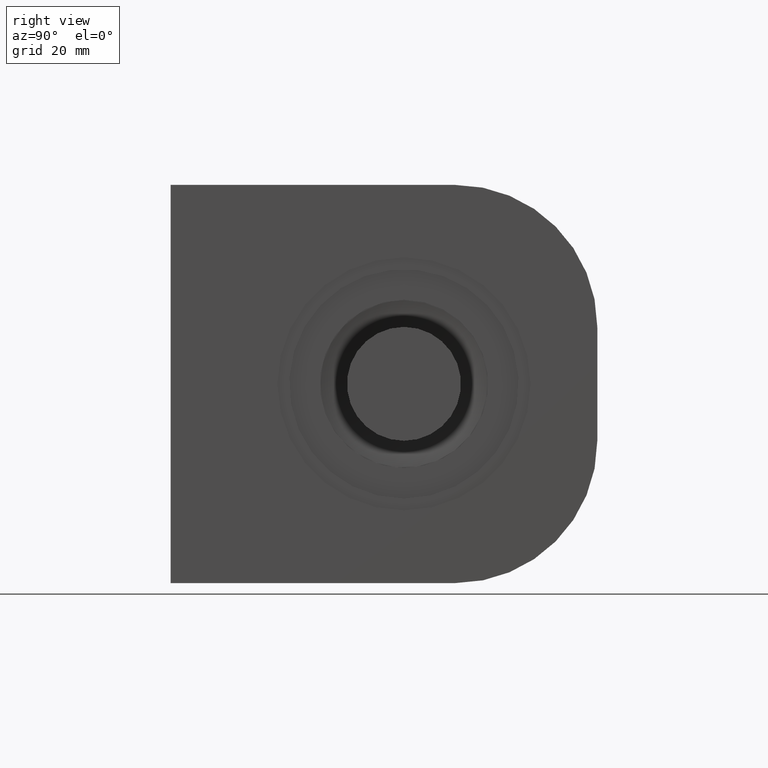
[diagram: clean part render]
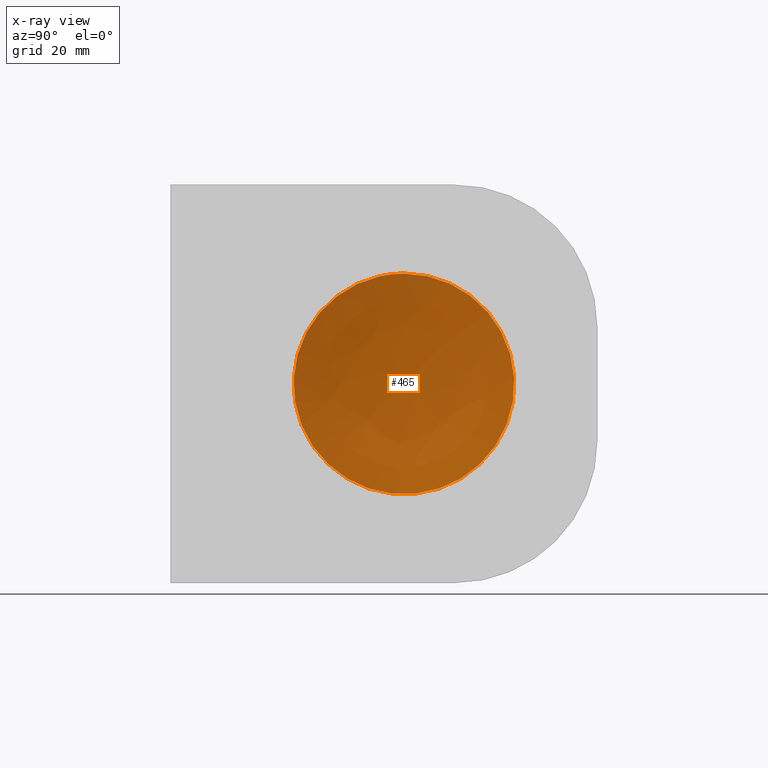
[diagram: x-ray — body ghosted, one internal face saturated and labeled with its STEP entity id]
A machine part, right view, then the same camera in x-ray: the body is ghosted and one INTERNAL B-rep face — a face not visible from any outside direction — is saturated and labeled: STEP entity #465.
In plain terms, the highlighted face is a freeform B-spline surface patch.
Its self-contained STEP definition (entity closure, byte-faithful):
#65 = CARTESIAN_POINT ( 'NONE',  ( 6.258551541125479289, 6.637599476776025575, -19.92762313814807129 ) ) ;
#277 = FACE_OUTER_BOUND ( 'NONE', #9398, .T. ) ;
#383 = CARTESIAN_POINT ( 'NONE',  ( 6.946203950081994094, 14.60332213015514213, 12.78724174221709475 ) ) ;
#456 = CARTESIAN_POINT ( 'NONE',  ( 6.946203950081999423, 8.568068353785555757, -17.41696023236161395 ) ) ;
#465 = ADVANCED_FACE ( 'NONE', ( #277 ), #5339, .F. ) ;
#525 = CARTESIAN_POINT ( 'NONE',  ( 6.946203950082002976, 19.39868396982641841, -1.298981685767838679 ) ) ;
#660 = CARTESIAN_POINT ( 'NONE',  ( 6.946203950082000311, 16.84697726151716779, 9.702770620593947015 ) ) ;
#734 = CARTESIAN_POINT ( 'NONE',  ( 6.946203950082002976, 4.392869564589938491, -18.90684591989301211 ) ) ;
#804 = CARTESIAN_POINT ( 'NONE',  ( 6.946203950082082024, -19.24515430384846937, -2.528295734589034449 ) ) ;
#873 = CARTESIAN_POINT ( 'NONE',  ( 6.946203950081985212, -0.6398776862006231303, -19.39977498918445420 ) ) ;
#944 = CARTESIAN_POINT ( 'NONE',  ( 6.946203950082004752, -12.80116983903454297, 14.59106020650618341 ) ) ;
#1007 = CARTESIAN_POINT ( 'NONE',  ( 6.946203950081985212, -2.541899611589565566, 19.27423934094847979 ) ) ;
#1415 = CARTESIAN_POINT ( 'NONE',  ( 6.245948097520509279, 19.65170365344365422, -6.559861190522755514 ) ) ;
#1451 = CARTESIAN_POINT ( 'NONE',  ( 6.946203950081980771, 11.85822873687669166, 15.40663636244817525 ) ) ;
#1508 = CARTESIAN_POINT ( 'NONE',  ( 6.946203950081998535, 11.83157268045081878, -15.42746063730172956 ) ) ;
#1577 = CARTESIAN_POINT ( 'NONE',  ( 6.946203950082006529, 19.24607539113172194, 2.519991824685212656 ) ) ;
#1646 = CARTESIAN_POINT ( 'NONE',  ( 6.946203950082006529, 19.36952412616860641, 1.258297215835074701 ) ) ;
#1712 = CARTESIAN_POINT ( 'NONE',  ( 6.946203950082013634, 9.719796073116466317, 16.80148036121550703 ) ) ;
#1783 = CARTESIAN_POINT ( 'NONE',  ( 6.946203950082019851, -1.281658504120813058, 19.39999996233405710 ) ) ;
#1860 = CARTESIAN_POINT ( 'NONE',  ( 6.946203950082001199, -9.719697484647349839, -16.80155752131329194 ) ) ;
#1924 = CARTESIAN_POINT ( 'NONE',  ( 6.946203950082003864, -8.597875277641120917, -17.40233878089916786 ) ) ;
#1989 = CARTESIAN_POINT ( 'NONE',  ( 6.946203950081983436, -16.81090132822010474, 9.703440768864357580 ) ) ;
#2064 = CARTESIAN_POINT ( 'NONE',  ( 6.946203950082008305, -6.234894568791050418, 18.38182606747509240 ) ) ;
#2390 = CARTESIAN_POINT ( 'NONE',  ( 6.260653718132478396, -19.75020321123500366, 6.442501741881993205 ) ) ;
#2575 = CARTESIAN_POINT ( 'NONE',  ( 6.946203950082019851, 1.281658504120831044, 19.39999996233404644 ) ) ;
#2680 = ORIENTED_EDGE ( 'NONE', *, *, #6373, .F. ) ;
#2706 = CARTESIAN_POINT ( 'NONE',  ( 6.946203950082009193, 18.17188894835864232, 6.822596649191170926 ) ) ;
#2776 = CARTESIAN_POINT ( 'NONE',  ( 6.946203950081995870, 15.41526772339394391, 11.79576574992345606 ) ) ;
#2845 = CARTESIAN_POINT ( 'NONE',  ( 6.946203950081979883, -5.043836202507014477, -18.77566251201246672 ) ) ;
#2917 = CARTESIAN_POINT ( 'NONE',  ( 6.946203950081999423, -19.15108964665016700, -3.161959514784617564 ) ) ;
#2989 = CARTESIAN_POINT ( 'NONE',  ( 6.946203950081994094, -10.26255707153453578, -16.47541185639293815 ) ) ;
#3058 = CARTESIAN_POINT ( 'NONE',  ( 6.946203950081985212, -18.96463485297438822, 4.099327633339921562 ) ) ;
#3125 = CARTESIAN_POINT ( 'NONE',  ( 6.946203950082010969, -8.602684114097593593, 17.43475787800918297 ) ) ;
#3185 = CARTESIAN_POINT ( 'NONE',  ( 6.946203950081998535, 5.198625662380514612E-15, 19.39999996233401802 ) ) ;
#3313 = CARTESIAN_POINT ( 'NONE',  ( 3.121013655138765497, 6.637599476776025575, -6.805789681143592951 ) ) ;
#3460 = CARTESIAN_POINT ( 'NONE',  ( 6.238775763578806810, -6.739801553572458026, 19.81025721178187027 ) ) ;
#3641 = CARTESIAN_POINT ( 'NONE',  ( 6.946203950081994982, 18.90851497361694200, 4.384888565264630778 ) ) ;
#3839 = CARTESIAN_POINT ( 'NONE',  ( 6.946203950081997647, 12.83396712273647644, 14.60319807867588082 ) ) ;
#3910 = CARTESIAN_POINT ( 'NONE',  ( 6.946203950081995870, 14.15216811190499513, -13.28442996558834821 ) ) ;
#3976 = CARTESIAN_POINT ( 'NONE',  ( 6.946203950082000311, 5.016666041039978374, -18.75091249751762490 ) ) ;
#4044 = CARTESIAN_POINT ( 'NONE',  ( 6.946203950082001199, 2.517428961074918092, -19.27814976626554611 ) ) ;
#4120 = CARTESIAN_POINT ( 'NONE',  ( 6.946203950081994094, -18.41385751682450689, -6.237364275147758264 ) ) ;
#4186 = CARTESIAN_POINT ( 'NONE',  ( 6.946203950082006529, -11.81243192870859637, 15.40244912756804752 ) ) ;
#4690 = CARTESIAN_POINT ( 'NONE',  ( 6.946203950082006529, 18.90078178772973416, -4.418160927654258607 ) ) ;
#4768 = CARTESIAN_POINT ( 'NONE',  ( 6.946203950082017187, 7.424440267380582270, -17.95642147421876089 ) ) ;
#4897 = CARTESIAN_POINT ( 'NONE',  ( 6.946203950082021628, 17.42734571882061445, -8.617453470722775677 ) ) ;
#5040 = CARTESIAN_POINT ( 'NONE',  ( 6.946203950082004752, -18.77997892130106194, -5.028049980706168043 ) ) ;
#5106 = CARTESIAN_POINT ( 'NONE',  ( 6.946203950082005640, -18.65377399374351697, 5.338294725314786326 ) ) ;
#5178 = CARTESIAN_POINT ( 'NONE',  ( 6.946203950082009193, -13.27168877197551744, 14.16413447974594852 ) ) ;
#5249 = CARTESIAN_POINT ( 'NONE',  ( 6.946203950082009193, -8.016326029764702099, -17.67776308673761321 ) ) ;
#5339 =( BOUNDED_SURFACE ( )  B_SPLINE_SURFACE ( 3, 3, ( 
 ( #11988, #1415, #13110, #5721 ),
 ( #65, #3313, #6550, #10873 ),
 ( #6685, #7609, #6480, #3460 ),
 ( #10021, #7758, #2390, #8889 ) ),
 .UNSPECIFIED., .F., .F., .F. ) 
 B_SPLINE_SURFACE_WITH_KNOTS ( ( 4, 4 ),
 ( 4, 4 ),
 ( 0.000000000000000000, 1.000000000000000000 ),
 ( 0.000000000000000000, 1.000000000000000000 ),
 .UNSPECIFIED. ) 
 GEOMETRIC_REPRESENTATION_ITEM ( )  RATIONAL_B_SPLINE_SURFACE ( (
 ( 1.000000000000000000, 0.9818297983848633947, 0.9818297983848633947, 1.000000000000000000),
 ( 0.9818027376989487687, 0.9639631840086657633, 0.9639631840086657633, 0.9818027376989487687),
 ( 0.9818027376989487687, 0.9639631840086657633, 0.9639631840086657633, 0.9818027376989487687),
 ( 1.000000000000000000, 0.9818297983848633947, 0.9818297983848633947, 1.000000000000000000) ) ) 
 REPRESENTATION_ITEM ( '' )  SURFACE ( )  );
#5721 = CARTESIAN_POINT ( 'NONE',  ( 9.243568033391415639, 19.65170365344365422, 19.09618771150509531 ) ) ;
#5760 = CARTESIAN_POINT ( 'NONE',  ( 6.946203950081997647, 18.75559593023402272, 4.999191890527908910 ) ) ;
#5818 = CARTESIAN_POINT ( 'NONE',  ( 6.946203950081994094, 10.23733785595234380, -16.49136367857662222 ) ) ;
#5958 = CARTESIAN_POINT ( 'NONE',  ( 6.946203950082000311, 15.76547922048316153, -11.30979740854537496 ) ) ;
#6098 = CARTESIAN_POINT ( 'NONE',  ( 6.946203950082019851, 6.830473686658677934E-15, 19.39999996233405355 ) ) ;
#6170 = CARTESIAN_POINT ( 'NONE',  ( 6.946203950081991429, -16.81040934265468323, -9.704441911277092103 ) ) ;
#6237 = CARTESIAN_POINT ( 'NONE',  ( 6.946203950082004752, -19.39932543777741358, 1.275485146195873165 ) ) ;
#6305 = CARTESIAN_POINT ( 'NONE',  ( 6.946203950082010969, -14.61392983530019407, 12.82165250017640368 ) ) ;
#6373 = EDGE_CURVE ( 'NONE', #12838, #12838, #9598, .T. ) ;
#6376 = CARTESIAN_POINT ( 'NONE',  ( 6.946203950082007417, -5.016125279243363266, 18.75110468857188906 ) ) ;
#6480 = CARTESIAN_POINT ( 'NONE',  ( 3.119716751763137452, -6.739801553572455362, 6.685310124474005633 ) ) ;
#6550 = CARTESIAN_POINT ( 'NONE',  ( 3.111664614156613329, 6.637599476776025575, 6.685932590486403093 ) ) ;
#6685 = CARTESIAN_POINT ( 'NONE',  ( 6.266310700881811080, -6.739801553572458026, -19.92576785947998275 ) ) ;
#6804 = CARTESIAN_POINT ( 'NONE',  ( 6.946203950081996759, 2.550027372619738220, 19.27422486538523927 ) ) ;
#6868 = CARTESIAN_POINT ( 'NONE',  ( 6.946203950082002976, 14.17625540517234484, 13.25876344722131961 ) ) ;
#6933 = CARTESIAN_POINT ( 'NONE',  ( 6.946203950081998535, 6.265148081707463845, 18.37143933033993903 ) ) ;
#7069 = CARTESIAN_POINT ( 'NONE',  ( 6.946203950081996759, 15.18720024444335337, -12.07521553908559753 ) ) ;
#7214 = CARTESIAN_POINT ( 'NONE',  ( 6.946203950081983436, -3.179885497269288930, -19.14810104759353848 ) ) ;
#7287 = CARTESIAN_POINT ( 'NONE',  ( 6.946203950082009193, -19.40033312236196750, -0.6222910051143947241 ) ) ;
#7354 = CARTESIAN_POINT ( 'NONE',  ( 6.946203950082009193, -17.95012858450717275, 7.439637036342303666 ) ) ;
#7422 = CARTESIAN_POINT ( 'NONE',  ( 6.946203950081994982, -17.68561249789427947, -7.998926485219540083 ) ) ;
#7609 = CARTESIAN_POINT ( 'NONE',  ( 3.129064922341620036, -6.739801553572455362, -6.805156056334080716 ) ) ;
#7758 = CARTESIAN_POINT ( 'NONE',  ( 6.269662366065623438, -19.75020321123500366, -6.557994906804801793 ) ) ;
#8009 = CARTESIAN_POINT ( 'NONE',  ( 6.946203950081997647, 4.432723777870259951, 18.89763357549456302 ) ) ;
#8143 = CARTESIAN_POINT ( 'NONE',  ( 6.946203950082002088, 15.79348285065853474, 11.28392655467764527 ) ) ;
#8209 = CARTESIAN_POINT ( 'NONE',  ( 6.946203950081994094, 12.80932124046455911, -14.62467301705839517 ) ) ;
#8277 = CARTESIAN_POINT ( 'NONE',  ( 6.946203950082082024, -19.36980714031211193, -1.256508992244946388 ) ) ;
#8351 = CARTESIAN_POINT ( 'NONE',  ( 6.946203950082006529, -1.274860180993676373, -19.36864718146663478 ) ) ;
#8420 = CARTESIAN_POINT ( 'NONE',  ( 6.946203950081996759, -11.82041657974675886, -15.39607603580086170 ) ) ;
#8485 = CARTESIAN_POINT ( 'NONE',  ( 6.946203950081991429, -11.29859768833957467, 15.78301334527604993 ) ) ;
#8889 = CARTESIAN_POINT ( 'NONE',  ( 9.266429477598263631, -19.75020321123500366, 19.09075483675884755 ) ) ;
#8986 = CARTESIAN_POINT ( 'NONE',  ( 6.946203950082019851, 18.15838032959077708, -6.858312000098348626 ) ) ;
#9125 = CARTESIAN_POINT ( 'NONE',  ( 6.946203950082014522, 18.37550617067580205, -6.253596822927931953 ) ) ;
#9186 = CARTESIAN_POINT ( 'NONE',  ( 6.946203950082009193, 16.83075273621663825, -9.731206562868122134 ) ) ;
#9268 = CARTESIAN_POINT ( 'NONE',  ( 6.946203950081995870, 14.57900484832499188, -12.81484094078464153 ) ) ;
#9338 = CARTESIAN_POINT ( 'NONE',  ( 6.946203950082000311, -16.48065395887525497, 10.25450239047531653 ) ) ;
#9398 = EDGE_LOOP ( 'NONE', ( #2680 ) ) ;
#9405 = CARTESIAN_POINT ( 'NONE',  ( 6.946203950081983436, -17.40942362801237664, 8.583422112561837736 ) ) ;
#9480 = CARTESIAN_POINT ( 'NONE',  ( 6.946203950081987877, -16.48443931609062929, -10.24806273559116221 ) ) ;
#9549 = CARTESIAN_POINT ( 'NONE',  ( 6.946203950082018075, -6.253103064290122859, -18.40863573209344040 ) ) ;
#9598 = B_SPLINE_CURVE_WITH_KNOTS ( 'NONE', 3,
 ( #13359, #2575, #6804, #8009, #13486, #6933, #12300, #12233, #13290, #1712, #10257, #1451, #3839, #6868, #383, #2776, #8143, #660, #11245, #2706, #10191, #5760, #3641, #11184, #1577, #1646, #13420, #525, #12496, #4690, #11318, #9125, #8986, #4897, #9186, #13553, #5958, #12432, #7069, #9268, #3910, #8209, #1508, #5818, #10121, #456, #4768, #13621, #3976, #734, #4044, #11524, #873, #8351, #11659, #7214, #2845, #9549, #5249, #1924, #1860, #2989, #12564, #8420, #10539, #12643, #11590, #11453, #9480, #6170, #10471, #7422, #4120, #5040, #2917, #804, #8277, #7287, #6237, #13834, #3058, #10611, #13764, #5106, #12709, #7354, #9405, #1989, #9338, #13689, #6305, #5178, #944, #4186, #8485, #12776, #3125, #11731, #2064, #6376, #10676, #1007, #1783, #6098 ),
 .UNSPECIFIED., .T., .F.,
 ( 4, 2, 2, 2, 2, 2, 2, 2, 2, 2, 2, 2, 2, 2, 2, 2, 2, 2, 2, 2, 2, 2, 2, 1, 2, 2, 2, 2, 2, 2, 2, 2, 2, 2, 2, 2, 2, 2, 2, 2, 2, 2, 2, 1, 2, 2, 2, 2, 2, 2, 2, 2, 4 ),
 ( 0.000000000000000000, 0.003823690083982543390, 0.005735535125973814652, 0.007647380167965086781, 0.009559225209956358910, 0.01147107025194762930, 0.01529476033593016662, 0.01720660537792143702, 0.01911845041991270047, 0.02294214050389523779, 0.02485398554588650818, 0.02676583058787777511, 0.02867767562986904203, 0.03058952067186031243, 0.03441321075584285322, 0.03632505579783411320, 0.03823690083982537319, 0.04206059092380791398, 0.04301651344480354744, 0.04397243596579918784, 0.04588428100779046170, 0.04970797109177301637, 0.05161981613376428329, 0.05353166117575555716, 0.05544350621774683102, 0.05735535125973809795, 0.06117904134372063873, 0.06309088638571190566, 0.06500273142770317258, 0.06882642151168573419, 0.07073826655367700111, 0.07265011159566826804, 0.07456195663765953496, 0.07647380167965080189, 0.08029749176363333574, 0.08220933680562461654, 0.08412118184761588346, 0.08794487193159841731, 0.08985671697358968424, 0.09176856201558095116, 0.09559225209956348501, 0.09654817462055911848, 0.09750409714155476582, 0.09941594218354601886, 0.1013277872255372719, 0.1032396322675285250, 0.1070633223515110588, 0.1089751673935023396, 0.1108870124354936065, 0.1147107025194761404, 0.1166225475614674212, 0.1185343926034587020, 0.1223580826874412220 ),
 .UNSPECIFIED. ) ;
#10021 = CARTESIAN_POINT ( 'NONE',  ( 9.292964354550015571, -19.75020321123500366, -19.20207017369088476 ) ) ;
#10121 = CARTESIAN_POINT ( 'NONE',  ( 6.946203950082003864, 9.687388343275873837, -16.82013009594604824 ) ) ;
#10191 = CARTESIAN_POINT ( 'NONE',  ( 6.946203950082001199, 18.38799239601790703, 6.216593432139408293 ) ) ;
#10257 = CARTESIAN_POINT ( 'NONE',  ( 6.946203950081980771, 10.27126246026567635, 16.47017530481859282 ) ) ;
#10471 = CARTESIAN_POINT ( 'NONE',  ( 6.946203950081987877, -17.41100516340536686, -8.580381942363326075 ) ) ;
#10539 = CARTESIAN_POINT ( 'NONE',  ( 6.946203950081994094, -12.79977054276946546, -14.59202794238569290 ) ) ;
#10611 = CARTESIAN_POINT ( 'NONE',  ( 6.946203950081994982, -18.89420335354214586, 4.412590111173950724 ) ) ;
#10676 = CARTESIAN_POINT ( 'NONE',  ( 6.946203950081984324, -4.401449032222491731, 18.90467228683316492 ) ) ;
#10873 = CARTESIAN_POINT ( 'NONE',  ( 6.231014040057697656, 6.637599476776025575, 19.81210173530907426 ) ) ;
#11184 = CARTESIAN_POINT ( 'NONE',  ( 6.946203950081993206, 19.15375538905837516, 3.145288656610438327 ) ) ;
#11245 = CARTESIAN_POINT ( 'NONE',  ( 6.946203950082004752, 17.44222234196024246, 8.587803916838863572 ) ) ;
#11318 = CARTESIAN_POINT ( 'NONE',  ( 6.946203950082013634, 18.74653746268143450, -5.033292502185824802 ) ) ;
#11453 = CARTESIAN_POINT ( 'NONE',  ( 6.946203950081995870, -15.43136206707949754, -11.82502375189861965 ) ) ;
#11524 = CARTESIAN_POINT ( 'NONE',  ( 6.946203950081986989, 1.259182729086782526, -19.40044627260496313 ) ) ;
#11590 = CARTESIAN_POINT ( 'NONE',  ( 6.946203950081995870, -14.62982137569036922, -12.80498861481262551 ) ) ;
#11659 = CARTESIAN_POINT ( 'NONE',  ( 6.946203950082006529, -2.548883585625432158, -19.24247787027826107 ) ) ;
#11731 = CARTESIAN_POINT ( 'NONE',  ( 6.946203950082012746, -6.840641236853906904, 18.16507267892182398 ) ) ;
#11988 = CARTESIAN_POINT ( 'NONE',  ( 9.270110461676999591, 19.65170365344365422, -19.20753472671743722 ) ) ;
#12233 = CARTESIAN_POINT ( 'NONE',  ( 6.946203950081993206, 8.026884918154328474, 17.67281214069364381 ) ) ;
#12300 = CARTESIAN_POINT ( 'NONE',  ( 6.946203950081997647, 6.859993437048557574, 18.15763366998004003 ) ) ;
#12432 = CARTESIAN_POINT ( 'NONE',  ( 6.946203950082000311, 15.38493845040510166, -11.82224688251232791 ) ) ;
#12496 = CARTESIAN_POINT ( 'NONE',  ( 6.946203950082010081, 19.27211321908624342, -2.558212097372153160 ) ) ;
#12564 = CARTESIAN_POINT ( 'NONE',  ( 6.946203950081987877, -11.31291716607843334, -15.77267189406171255 ) ) ;
#12643 = CARTESIAN_POINT ( 'NONE',  ( 6.946203950081997647, -13.27245589908838497, -14.16374826937406262 ) ) ;
#12709 = CARTESIAN_POINT ( 'NONE',  ( 6.946203950081986989, -18.37694843281034451, 6.249038302676423129 ) ) ;
#12776 = CARTESIAN_POINT ( 'NONE',  ( 6.946203950081991429, -9.716970275972649063, 16.83887683192198992 ) ) ;
#12838 = VERTEX_POINT ( 'NONE', #3185 ) ;
#13110 = CARTESIAN_POINT ( 'NONE',  ( 6.236936885893247684, 19.65170365344365422, 6.444335158387280771 ) ) ;
#13290 = CARTESIAN_POINT ( 'NONE',  ( 6.946203950082012746, 8.598931516977442513, 17.40179745881477302 ) ) ;
#13359 = CARTESIAN_POINT ( 'NONE',  ( 6.946203950082019851, 6.830473686658677934E-15, 19.39999996233405355 ) ) ;
#13420 = CARTESIAN_POINT ( 'NONE',  ( 6.946203950082003864, 19.40064279470908204, 0.6197833099665709389 ) ) ;
#13486 = CARTESIAN_POINT ( 'NONE',  ( 6.946203950082001199, 5.052427020645440692, 18.74126049002937222 ) ) ;
#13553 = CARTESIAN_POINT ( 'NONE',  ( 6.946203950081999423, 15.94875322728278988, -11.04979333754446280 ) ) ;
#13621 = CARTESIAN_POINT ( 'NONE',  ( 6.946203950081994982, 6.232769423472121595, -18.38249827881720222 ) ) ;
#13689 = CARTESIAN_POINT ( 'NONE',  ( 6.946203950081998535, -15.41699240437863594, 11.84497557369675391 ) ) ;
#13764 = CARTESIAN_POINT ( 'NONE',  ( 6.946203950081995870, -18.73882168892680156, 5.031742597236116943 ) ) ;
#13834 = CARTESIAN_POINT ( 'NONE',  ( 6.946203950081994094, -19.27608845109568136, 2.534211984224017833 ) ) ;